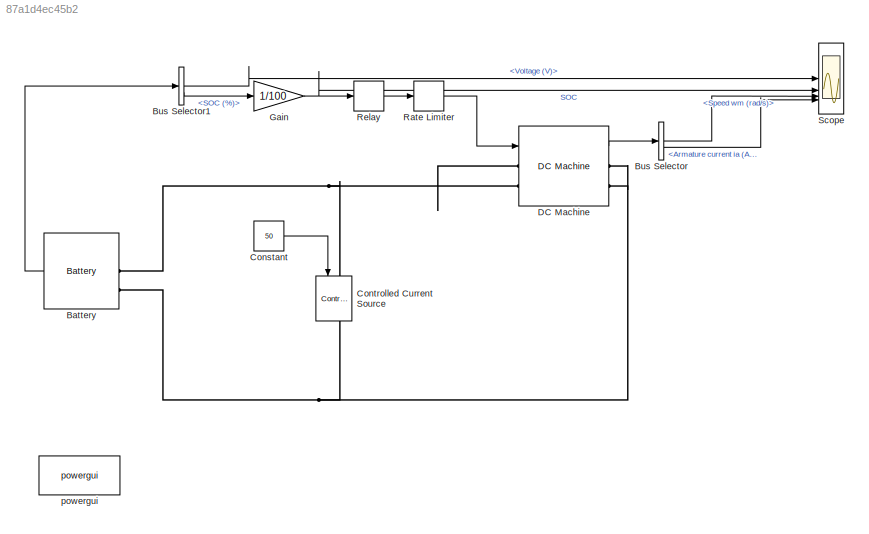
MODEL slx_87a1d4ec45b2
KIND model
CONFIG AbsTol = auto
CONFIG EnableMultiTasking = off
CONFIG FixedStep = auto
CONFIG MaxStep = auto
CONFIG MinStep = auto
CONFIG RelTol = 1e-3
CONFIG SampleTimeConstraint = Unconstrained
CONFIG SolverName = VariableStepAuto
CONFIG StartTime = 0.0
CONFIG StopTime = 1600
BLOCK [Reference] Battery  REF=spsBatteryLib/Battery
  LibrarySourceBlock = sps_lib/Sources/Battery
  SourceBlock = spsBatteryLib/Battery
  SourceType = Battery
BLOCK [BusSelector] Bus Selector
  OutputSignals = Speed wm (rad/s),Armature current ia (A)
BLOCK [BusSelector] Bus Selector1
  OutputSignals = Voltage (V),SOC (%)
BLOCK [Constant] Constant
  Value = 50
BLOCK [Reference] Controlled Current Source  REF=spsControlledCurrentSourceLib/Controlled Current Source
  LibrarySourceBlock = sps_lib/Sources/Controlled Current Source
  NameLocation = top
  SourceBlock = spsControlledCurrentSourceLib/Controlled Current Source
  SourceType = Controlled Current Source
BLOCK [Reference] DC Machine  REF=spsDCMachineLib/DC Machine
  LibrarySourceBlock = sps_lib/Electrical Machines/DC Machine
  SourceBlock = spsDCMachineLib/DC Machine
  SourceType = DC machine
BLOCK [Gain] Gain
  Gain = 1/100
BLOCK [RateLimiter] Rate Limiter
  FallingSlewLimit = -5
  RisingSlewLimit = 5
  SampleTimeMode = inherited
BLOCK [Relay] Relay
  OffOutputValue = -200
  OffSwitchValue = 0.4
  OnOutputValue = 0
  OnSwitchValue = 0.8
  ZeroCross = off
BLOCK [Scope] Scope
  Floating = off
  NumInputPorts = 4
  ScopeSpecificationString = Simulink.scopes.TimeScopeBlockCfg('CurrentConfiguration', extmgr.ConfigurationSet(extmgr.Configuration('Core','General UI',true,'FigureColor',[1 1 1]),extmgr.Configuration('Core','Source UI',true),extmgr.Configuration('Sources','WiredSimulink',true),extmgr.Configuration('Visuals','Time Domain',true,'TimeAxisLabels','All','SerializedDisplays',{struct('MinYLimReal','116.86861','MaxYLimReal','302.129...<+4343ch>
BLOCK [Reference] powergui  REF=sps_lib/powergui
  LibrarySourceBlock = sps_lib/powergui
  Priority = 1
  SourceBlock = sps_lib/powergui
  SourceType = PSB option menu block
LINE Battery:1 -> Bus Selector1:1
LINE Bus Selector1:1 -> Scope:1
LINE Bus Selector1:2 -> Gain:1
LINE Bus Selector:1 -> Scope:3
LINE Bus Selector:2 -> Scope:4
LINE Constant:1 -> Controlled Current Source:1
LINE DC Machine:1 -> Bus Selector:1
NET Gain:1 -> Relay:1, Scope:2
LINE Rate Limiter:1 -> DC Machine:1
LINE Relay:1 -> Rate Limiter:1
PNET net1: Battery:LConn1 -- Controlled Current Source:LConn1 -- DC Machine:LConn1 -- DC Machine:LConn2
PNET net2: Battery:LConn2 -- Controlled Current Source:RConn1 -- DC Machine:RConn1 -- DC Machine:RConn2
note: NET lines group one-source signal fan-out (src -> all destinations, sorted); 1:1 wires keep LINE; PNET lines group multi-terminal physical nets as a canonical sorted terminal list (undirected conserving connections); 2-terminal nets keep the pairwise PLINE form
